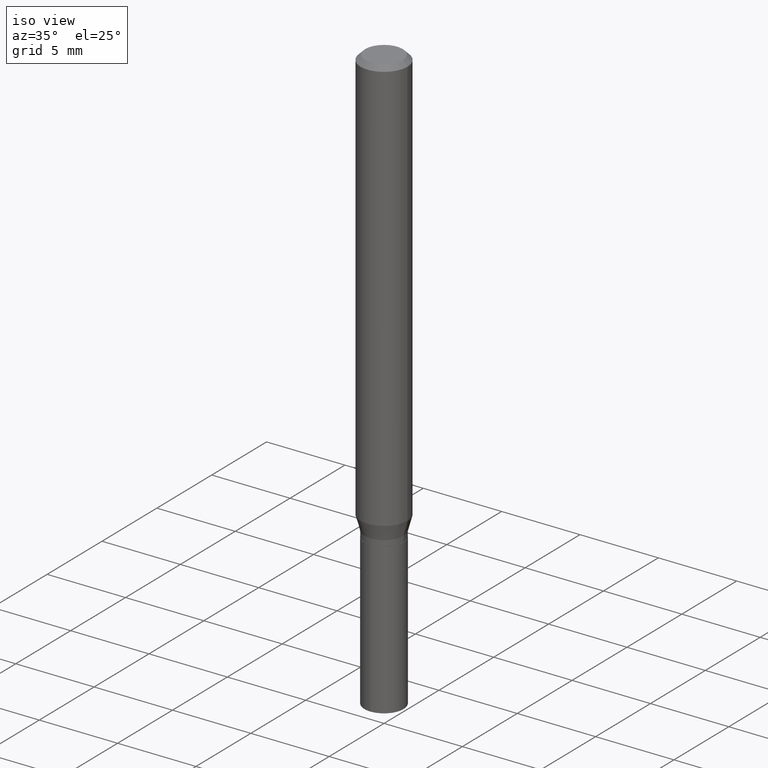
[diagram: clean part render]
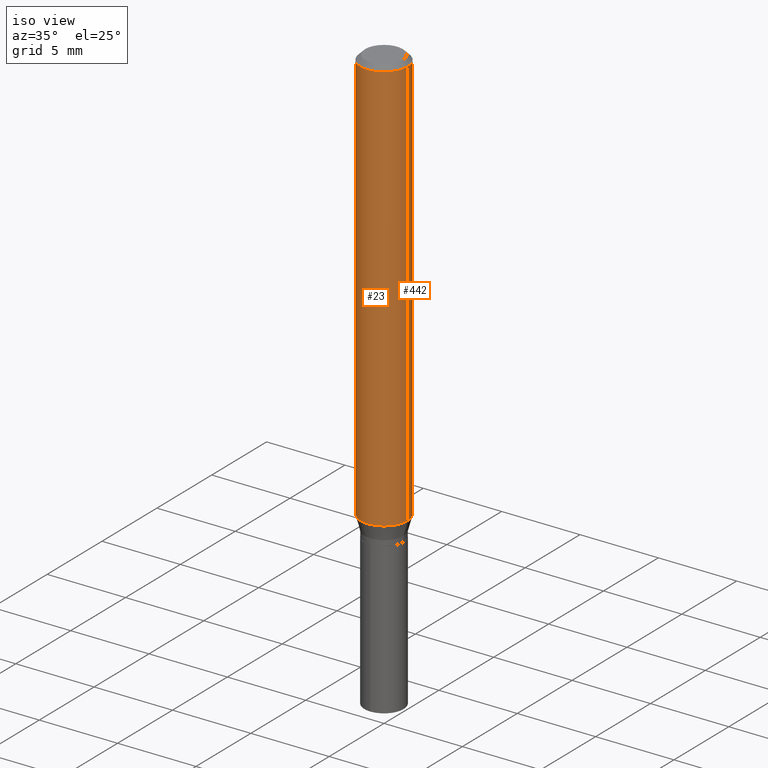
[diagram: same view with one multi-face feature highlighted, each face labeled with its STEP entity id]
A machine part, iso view. The highlighted faces form ONE feature: a constant-radius fillet chain: 2 tangent blend faces with common blend radius 1.4999 mm. The faces share edges in the B-rep.
Their STEP definitions:
[1] entity #23 (Cylinder):
#17 = CARTESIAN_POINT ( 'NONE',  ( -0.05905000000000013016, -3.221827616442726183E-15, -1.042939299545446064 ) ) ;
#23 = ADVANCED_FACE ( 'NONE', ( #237 ), #267, .T. ) ;
#33 = DIRECTION ( 'NONE',  ( -2.445468806185136597E-29, 3.491481338843145583E-15, 1.000000000000000000 ) ) ;
#55 = VERTEX_POINT ( 'NONE', #329 ) ;
#61 = AXIS2_PLACEMENT_3D ( 'NONE', #184, #403, #325 ) ;
#67 = DIRECTION ( 'NONE',  ( -2.445468806185136877E-29, 3.491481338843145188E-15, 1.000000000000000000 ) ) ;
#105 = DIRECTION ( 'NONE',  ( -2.445468806185136597E-29, 3.491481338843145583E-15, 1.000000000000000000 ) ) ;
#113 = VERTEX_POINT ( 'NONE', #449 ) ;
#135 = VERTEX_POINT ( 'NONE', #17 ) ;
#138 = EDGE_CURVE ( 'NONE', #135, #55, #469, .T. ) ;
#140 = EDGE_LOOP ( 'NONE', ( #156, #465, #294, #391 ) ) ;
#155 = VECTOR ( 'NONE', #67, 39.37007874015748143 ) ;
#156 = ORIENTED_EDGE ( 'NONE', *, *, #138, .F. ) ;
#168 = VECTOR ( 'NONE', #420, 39.37007874015748143 ) ;
#169 = LINE ( 'NONE', #315, #168 ) ;
#184 = CARTESIAN_POINT ( 'NONE',  ( 2.888098660104664642E-31, -4.123439461173780879E-17, -0.01181000000000007565 ) ) ;
#210 = VERTEX_POINT ( 'NONE', #279 ) ;
#222 = CIRCLE ( 'NONE', #61, 0.05904999999999999832 ) ;
#237 = FACE_OUTER_BOUND ( 'NONE', #140, .T. ) ;
#260 = DIRECTION ( 'NONE',  ( 1.000000000000000000, -6.982962677686265133E-15, 0.000000000000000000 ) ) ;
#265 = AXIS2_PLACEMENT_3D ( 'NONE', #365, #105, #260 ) ;
#267 = CYLINDRICAL_SURFACE ( 'NONE', #461, 0.05905000000000006771 ) ;
#279 = CARTESIAN_POINT ( 'NONE',  ( 0.05905000000000013016, -4.053747048026441779E-15, -1.042939299545446064 ) ) ;
#292 = EDGE_CURVE ( 'NONE', #210, #113, #169, .T. ) ;
#294 = ORIENTED_EDGE ( 'NONE', *, *, #292, .T. ) ;
#303 = DIRECTION ( 'NONE',  ( 1.000000000000000000, -6.982962677686266711E-15, 4.876176775795936353E-29 ) ) ;
#315 = CARTESIAN_POINT ( 'NONE',  ( 0.05905000000000006771, -4.123439461173745257E-16, 2.879382386107503723E-30 ) ) ;
#325 = DIRECTION ( 'NONE',  ( 1.000000000000000000, -6.982962677686266711E-15, 0.000000000000000000 ) ) ;
#329 = CARTESIAN_POINT ( 'NONE',  ( -0.05904999999999999832, -1.421743262794061815E-15, -0.01181000000000007565 ) ) ;
#365 = CARTESIAN_POINT ( 'NONE',  ( 2.550475523782964648E-29, -3.641403101909066859E-15, -1.042939299545446064 ) ) ;
#375 = CARTESIAN_POINT ( 'NONE',  ( 0.000000000000000000, 0.000000000000000000, 0.000000000000000000 ) ) ;
#384 = EDGE_CURVE ( 'NONE', #135, #210, #388, .T. ) ;
#388 = CIRCLE ( 'NONE', #265, 0.05905000000000013016 ) ;
#391 = ORIENTED_EDGE ( 'NONE', *, *, #426, .F. ) ;
#403 = DIRECTION ( 'NONE',  ( -2.445468806185136597E-29, 3.491481338843145583E-15, 1.000000000000000000 ) ) ;
#420 = DIRECTION ( 'NONE',  ( -2.445468806185136877E-29, 3.491481338843145188E-15, 1.000000000000000000 ) ) ;
#426 = EDGE_CURVE ( 'NONE', #55, #113, #222, .T. ) ;
#449 = CARTESIAN_POINT ( 'NONE',  ( 0.05904999999999999832, -4.535783407291118600E-16, -0.01181000000000007565 ) ) ;
#458 = CARTESIAN_POINT ( 'NONE',  ( -0.05905000000000006771, 4.195754854663396409E-16, -2.904631170795525045E-30 ) ) ;
#461 = AXIS2_PLACEMENT_3D ( 'NONE', #375, #33, #303 ) ;
#465 = ORIENTED_EDGE ( 'NONE', *, *, #384, .T. ) ;
#469 = LINE ( 'NONE', #458, #155 ) ;
[2] entity #442 (Cylinder):
#17 = CARTESIAN_POINT ( 'NONE',  ( -0.05905000000000013016, -3.221827616442726183E-15, -1.042939299545446064 ) ) ;
#27 = EDGE_CURVE ( 'NONE', #210, #135, #28, .T. ) ;
#28 = CIRCLE ( 'NONE', #277, 0.05905000000000013016 ) ;
#52 = EDGE_LOOP ( 'NONE', ( #181, #137, #431, #392 ) ) ;
#55 = VERTEX_POINT ( 'NONE', #329 ) ;
#64 = FACE_OUTER_BOUND ( 'NONE', #52, .T. ) ;
#67 = DIRECTION ( 'NONE',  ( -2.445468806185136877E-29, 3.491481338843145188E-15, 1.000000000000000000 ) ) ;
#83 = AXIS2_PLACEMENT_3D ( 'NONE', #186, #332, #328 ) ;
#113 = VERTEX_POINT ( 'NONE', #449 ) ;
#135 = VERTEX_POINT ( 'NONE', #17 ) ;
#137 = ORIENTED_EDGE ( 'NONE', *, *, #138, .T. ) ;
#138 = EDGE_CURVE ( 'NONE', #135, #55, #469, .T. ) ;
#141 = CARTESIAN_POINT ( 'NONE',  ( 2.888098660104664642E-31, -4.123439461173780879E-17, -0.01181000000000007565 ) ) ;
#142 = EDGE_CURVE ( 'NONE', #113, #55, #439, .T. ) ;
#155 = VECTOR ( 'NONE', #67, 39.37007874015748143 ) ;
#165 = DIRECTION ( 'NONE',  ( -2.445468806185136597E-29, 3.491481338843145583E-15, 1.000000000000000000 ) ) ;
#168 = VECTOR ( 'NONE', #420, 39.37007874015748143 ) ;
#169 = LINE ( 'NONE', #315, #168 ) ;
#181 = ORIENTED_EDGE ( 'NONE', *, *, #27, .T. ) ;
#186 = CARTESIAN_POINT ( 'NONE',  ( 0.000000000000000000, 0.000000000000000000, 0.000000000000000000 ) ) ;
#194 = DIRECTION ( 'NONE',  ( 1.000000000000000000, -6.982962677686265133E-15, 0.000000000000000000 ) ) ;
#210 = VERTEX_POINT ( 'NONE', #279 ) ;
#231 = DIRECTION ( 'NONE',  ( 1.000000000000000000, -6.982962677686266711E-15, 0.000000000000000000 ) ) ;
#232 = CARTESIAN_POINT ( 'NONE',  ( 2.550475523782964648E-29, -3.641403101909066859E-15, -1.042939299545446064 ) ) ;
#239 = AXIS2_PLACEMENT_3D ( 'NONE', #141, #476, #231 ) ;
#266 = CYLINDRICAL_SURFACE ( 'NONE', #83, 0.05905000000000006771 ) ;
#277 = AXIS2_PLACEMENT_3D ( 'NONE', #232, #165, #194 ) ;
#279 = CARTESIAN_POINT ( 'NONE',  ( 0.05905000000000013016, -4.053747048026441779E-15, -1.042939299545446064 ) ) ;
#292 = EDGE_CURVE ( 'NONE', #210, #113, #169, .T. ) ;
#315 = CARTESIAN_POINT ( 'NONE',  ( 0.05905000000000006771, -4.123439461173745257E-16, 2.879382386107503723E-30 ) ) ;
#328 = DIRECTION ( 'NONE',  ( 1.000000000000000000, -6.982962677686266711E-15, 4.876176775795936353E-29 ) ) ;
#329 = CARTESIAN_POINT ( 'NONE',  ( -0.05904999999999999832, -1.421743262794061815E-15, -0.01181000000000007565 ) ) ;
#332 = DIRECTION ( 'NONE',  ( -2.445468806185136597E-29, 3.491481338843145583E-15, 1.000000000000000000 ) ) ;
#392 = ORIENTED_EDGE ( 'NONE', *, *, #292, .F. ) ;
#420 = DIRECTION ( 'NONE',  ( -2.445468806185136877E-29, 3.491481338843145188E-15, 1.000000000000000000 ) ) ;
#431 = ORIENTED_EDGE ( 'NONE', *, *, #142, .F. ) ;
#439 = CIRCLE ( 'NONE', #239, 0.05904999999999999832 ) ;
#442 = ADVANCED_FACE ( 'NONE', ( #64 ), #266, .T. ) ;
#449 = CARTESIAN_POINT ( 'NONE',  ( 0.05904999999999999832, -4.535783407291118600E-16, -0.01181000000000007565 ) ) ;
#458 = CARTESIAN_POINT ( 'NONE',  ( -0.05905000000000006771, 4.195754854663396409E-16, -2.904631170795525045E-30 ) ) ;
#469 = LINE ( 'NONE', #458, #155 ) ;
#476 = DIRECTION ( 'NONE',  ( -2.445468806185136597E-29, 3.491481338843145583E-15, 1.000000000000000000 ) ) ;